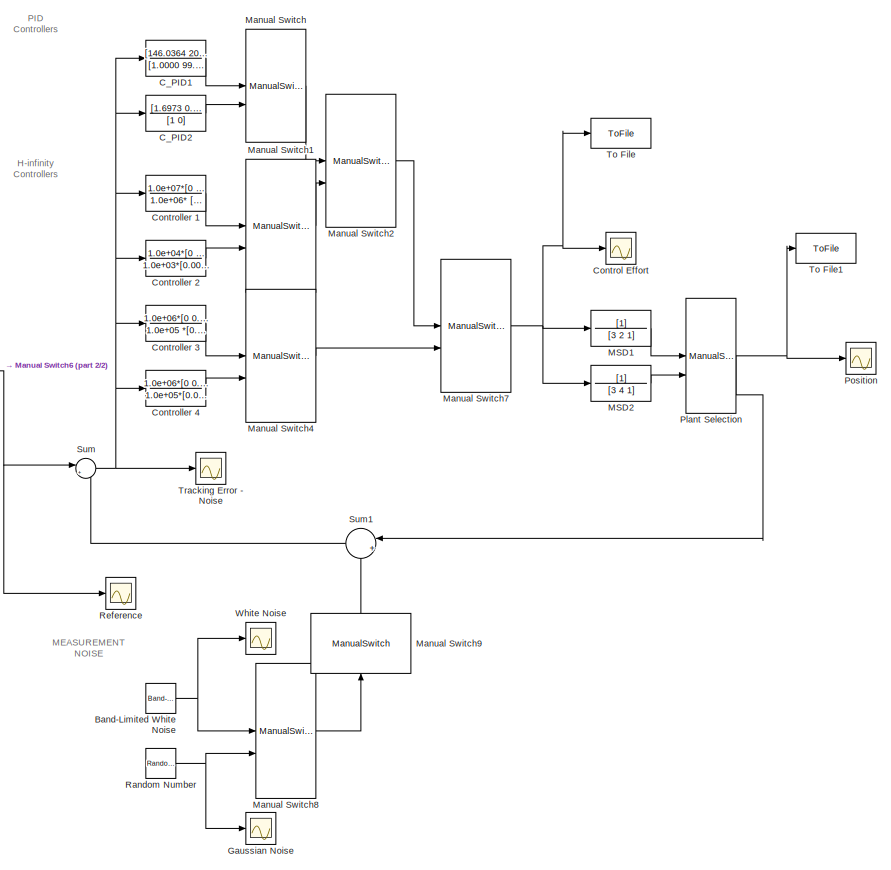
[diagram: root canvas - part 1/2, right side, full height]
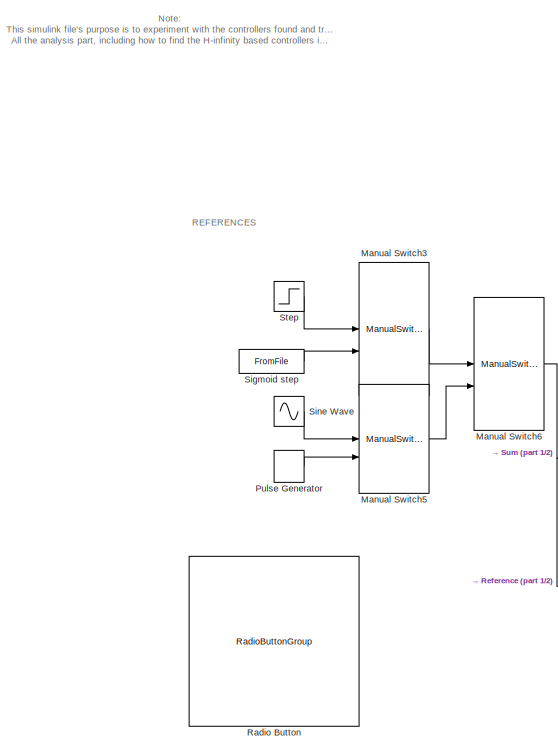
[diagram: root canvas - part 2/2, left side, full height]
MODEL slx_f614519868be
KIND model
CONFIG AbsTol = auto
CONFIG EnableMultiTasking = off
CONFIG FixedStep = auto
CONFIG MaxStep = auto
CONFIG MinStep = auto
CONFIG RelTol = 1e-3
CONFIG SampleTimeConstraint = Unconstrained
CONFIG SolverName = VariableStepAuto
CONFIG StartTime = 0.0
CONFIG StopTime = 10.0
BLOCK [TransferFcn]  Controller 1
  Denominator = 1.0e+06* [0.0000    0.0025    2.4386    0.1219]
  Numerator = 1.0e+07*[0    3.6384    2.4256    1.2128]
BLOCK [Reference] Band-Limited White Noise  REF=simulink/Sources/Band-Limited
White Noise
  SourceBlock = simulink/Sources/Band-Limited\nWhite Noise
  SourceType = Band-Limited White Noise.
BLOCK [TransferFcn] C_PID1
  Denominator = [1.0000   99.2281         0]
  Numerator = [146.0364  209.0861   74.8100]
BLOCK [TransferFcn] C_PID2
  Denominator = [1     0]
  Numerator = [1.6973    0.5433]
BLOCK [Scope] Control Effort
  Floating = off
  NumInputPorts = 1
  ScopeSpecificationString = Simulink.scopes.TimeScopeBlockCfg('CurrentConfiguration', extmgr.ConfigurationSet(extmgr.Configuration('Core','General UI',true),extmgr.Configuration('Core','Source UI',true),extmgr.Configuration('Sources','WiredSimulink',true,'DataLoggingVariableName','ScopeData1'),extmgr.Configuration('Visuals','Time Domain',true,'SerializedDisplays',{struct('MinYLimReal','-41.63543','MaxYLimReal','156.07931','Y...<+1412ch>
BLOCK [TransferFcn] Controller 2
  Denominator = 1.0e+03*[0.0010    0.2265    2.7148    0.1352]
  Numerator = 1.0e+04*[0    2.5678    1.7119    0.8559]
BLOCK [TransferFcn] Controller 3
  Denominator = 1.0e+05 *[0.0000 0.0059  0.2943    4.6686    0.2327]
  Numerator = 1.0e+06*[0 0.0000 5.0358 3.3572 1.6786]
BLOCK [TransferFcn] Controller 4
  Denominator = 1.0e+05*[0.0000 0.0041 0.2670 5.2375 0.2612]
  Numerator = 1.0e+06*[0 0.0000 5.0847 3.3898 1.6949]
BLOCK [Scope] Gaussian Noise
  Floating = off
  NumInputPorts = 1
  ScopeSpecificationString = Simulink.scopes.TimeScopeBlockCfg('CurrentConfiguration', extmgr.ConfigurationSet(extmgr.Configuration('Core','General UI',true),extmgr.Configuration('Core','Source UI',true),extmgr.Configuration('Sources','WiredSimulink',true,'DataLoggingVariableName','ScopeData1'),extmgr.Configuration('Visuals','Time Domain',true,'SerializedDisplays',{struct('MinYLimReal','-0.11721','MaxYLimReal','0.1257','YLabe...<+1397ch>
BLOCK [TransferFcn] MSD1
  Denominator = [3 2 1]
BLOCK [TransferFcn] MSD2
  Denominator = [3 4 1]
BLOCK [ManualSwitch] Manual Switch
BLOCK [ManualSwitch] Manual Switch1
  CurrentSetting = 0
BLOCK [ManualSwitch] Manual Switch2
  CurrentSetting = 0
BLOCK [ManualSwitch] Manual Switch3
BLOCK [ManualSwitch] Manual Switch4
  CurrentSetting = 0
BLOCK [ManualSwitch] Manual Switch5
BLOCK [ManualSwitch] Manual Switch6
BLOCK [ManualSwitch] Manual Switch7
  CurrentSetting = 0
BLOCK [ManualSwitch] Manual Switch8
BLOCK [ManualSwitch] Manual Switch9
  NameLocation = right
BLOCK [ManualSwitch] Plant Selection
BLOCK [Scope] Position
  Floating = off
  NumInputPorts = 1
  ScopeSpecificationString = Simulink.scopes.TimeScopeBlockCfg('CurrentConfiguration', extmgr.ConfigurationSet(extmgr.Configuration('Core','General UI',true),extmgr.Configuration('Core','Source UI',true),extmgr.Configuration('Sources','WiredSimulink',true),extmgr.Configuration('Visuals','Time Domain',true,'SerializedDisplays',{struct('MinYLimReal','-0.12401','MaxYLimReal','1.11611','YLabelReal','','MinYLimMag','0.00000','MaxY...<+1364ch>
BLOCK [DiscretePulseGenerator] Pulse Generator
  Period = 3
  PulseType = Time based
  PulseWidth = 50
BLOCK [RadioButtonGroup] Radio Button
  ButtonGroupName = Group
  SelectedLabel = omega = 0.1
BLOCK [RandomNumber] Random Number
  SampleTime = 0.01
  Variance = 0.001
BLOCK [Scope] Reference
  Floating = off
  NumInputPorts = 1
  ScopeSpecificationString = Simulink.scopes.TimeScopeBlockCfg('CurrentConfiguration', extmgr.ConfigurationSet(extmgr.Configuration('Core','General UI',true),extmgr.Configuration('Core','Source UI',true),extmgr.Configuration('Sources','WiredSimulink',true,'DataLoggingVariableName','ScopeData2'),extmgr.Configuration('Visuals','Time Domain',true,'SerializedDisplays',{struct('MinYLimReal','-1.25','MaxYLimReal','11.25','YLabelRea...<+1359ch>
BLOCK [FromFile] Sigmoid step
  FileName = smooth.mat
  OutDataTypeStr = double
  SampleTime = 0.01
BLOCK [Sin] Sine Wave
  Frequency = 0.1
  SampleTime = 0
BLOCK [Step] Step
  SampleTime = 0
  Time = 0
BLOCK [Sum] Sum
  Inputs = |+-
BLOCK [Sum] Sum1
  Inputs = |++
BLOCK [ToFile] To File
  Filename = noisy_m4.mat
  MatrixName = u_n4
  SampleTime = 0.01
BLOCK [ToFile] To File1
  Filename = noisy_y4.mat
  MatrixName = y_n4
  SampleTime = 0.01
BLOCK [Scope] Tracking Error - Noise
  Floating = off
  NumInputPorts = 1
  ScopeSpecificationString = Simulink.scopes.TimeScopeBlockCfg('CurrentConfiguration', extmgr.ConfigurationSet(extmgr.Configuration('Core','General UI',true),extmgr.Configuration('Core','Source UI',true),extmgr.Configuration('Sources','WiredSimulink',true,'DataLoggingVariableName','ScopeData1'),extmgr.Configuration('Visuals','Time Domain',true,'SerializedDisplays',{struct('MinYLimReal','-0.07697','MaxYLimReal','0.69274','YLab...<+1391ch>
BLOCK [Scope] White Noise
  Floating = off
  NameLocation = top
  NumInputPorts = 1
  ScopeSpecificationString = Simulink.scopes.TimeScopeBlockCfg('CurrentConfiguration', extmgr.ConfigurationSet(extmgr.Configuration('Core','General UI',true),extmgr.Configuration('Core','Source UI',true),extmgr.Configuration('Sources','WiredSimulink',true,'DataLoggingVariableName','ScopeData2'),extmgr.Configuration('Visuals','Time Domain',true,'SerializedDisplays',{struct('MinYLimReal','-0.10171','MaxYLimReal','0.10929','YLab...<+1412ch>
ANNOTATION (root): PLANT MODELS
ANNOTATION (root): MEASUREMENT NOISE
ANNOTATION (root): REFERENCES
ANNOTATION (root): Note : This simulink file's purpose is to experiment with the controllers found and try some different inputs, other than confronting the results given by Matlab. All the analysis part, including how to find the H-infinity based controllers is reported in the file: "---" and won't be treated here.
ANNOTATION (root): H-infinity Controllers
ANNOTATION (root): PID Controllers
LINE  Controller 1:1 -> Manual Switch1:1
NET Band-Limited White Noise:1 -> Manual Switch8:1, White Noise:1
LINE C_PID1:1 -> Manual Switch:1
LINE C_PID2:1 -> Manual Switch:2
LINE Controller 2:1 -> Manual Switch1:2
LINE Controller 3:1 -> Manual Switch4:1
LINE Controller 4:1 -> Manual Switch4:2
LINE MSD1:1 -> Plant Selection:1
LINE MSD2:1 -> Plant Selection:2
LINE Manual Switch1:1 -> Manual Switch2:2
LINE Manual Switch2:1 -> Manual Switch7:1
LINE Manual Switch3:1 -> Manual Switch6:1
LINE Manual Switch4:1 -> Manual Switch7:2
LINE Manual Switch5:1 -> Manual Switch6:2
NET Manual Switch6:1 -> Reference:1, Sum:1
NET Manual Switch7:1 -> Control Effort:1, MSD1:1, MSD2:1, To File:1
LINE Manual Switch8:1 -> Manual Switch9:1
LINE Manual Switch9:1 -> Sum1:2
LINE Manual Switch:1 -> Manual Switch2:1
NET Plant Selection:1 -> Position:1, Sum1:1, To File1:1
LINE Pulse Generator:1 -> Manual Switch5:2
NET Random Number:1 -> Gaussian Noise:1, Manual Switch8:2
LINE Sigmoid step:1 -> Manual Switch3:2
LINE Sine Wave:1 -> Manual Switch5:1
LINE Step:1 -> Manual Switch3:1
LINE Sum1:1 -> Sum:2
NET Sum:1 ->  Controller 1:1, C_PID1:1, C_PID2:1, Controller 2:1, Controller 3:1, Controller 4:1, Tracking Error - Noise:1
note: NET lines group one-source signal fan-out (src -> all destinations, sorted); 1:1 wires keep LINE
